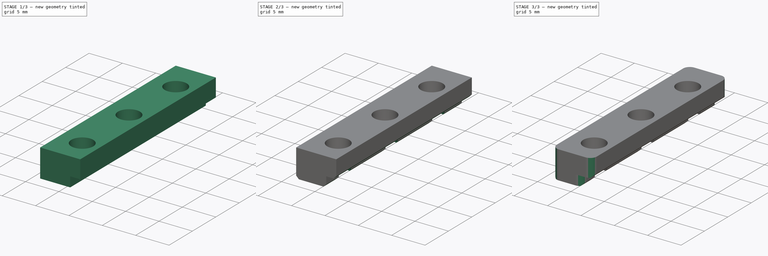
[diagram: build sequence overview — one tinted view per stage of 3, left to right]
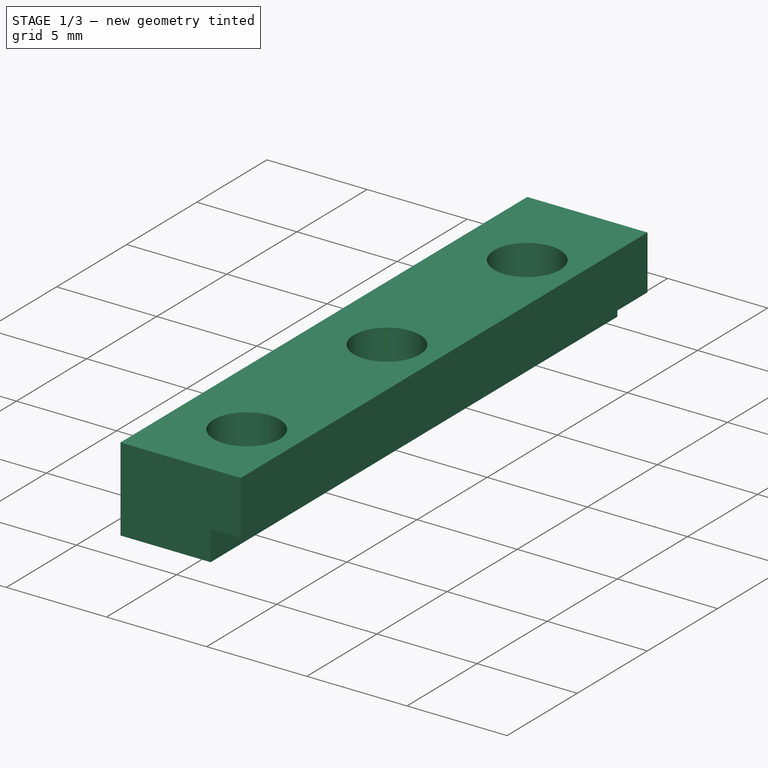
[diagram: stage 1 of 3 — iso view after this stage's code; geometry added in this stage tinted green]
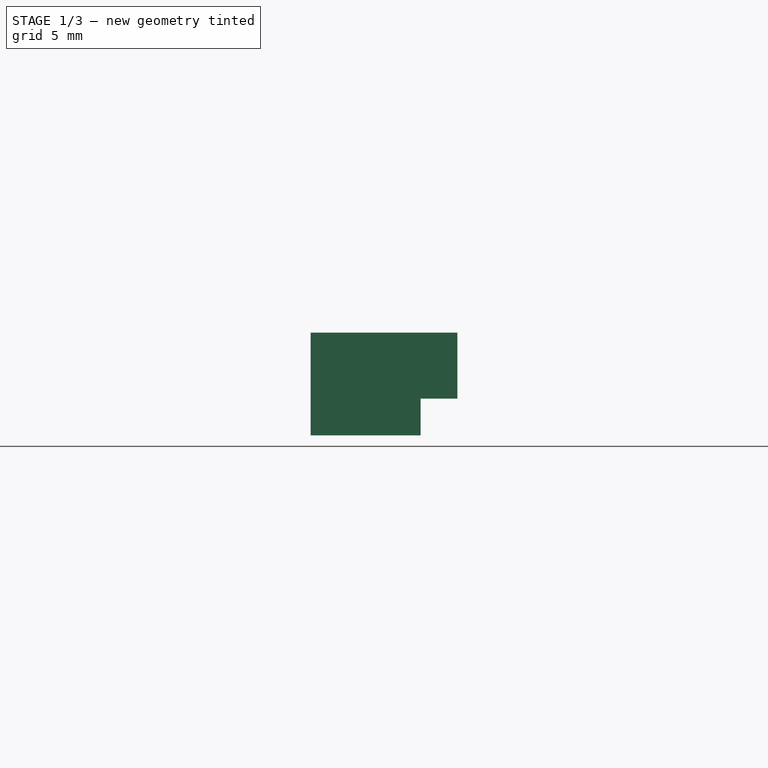
[diagram: stage 1 of 3 — front view after this stage's code; geometry added in this stage tinted green]
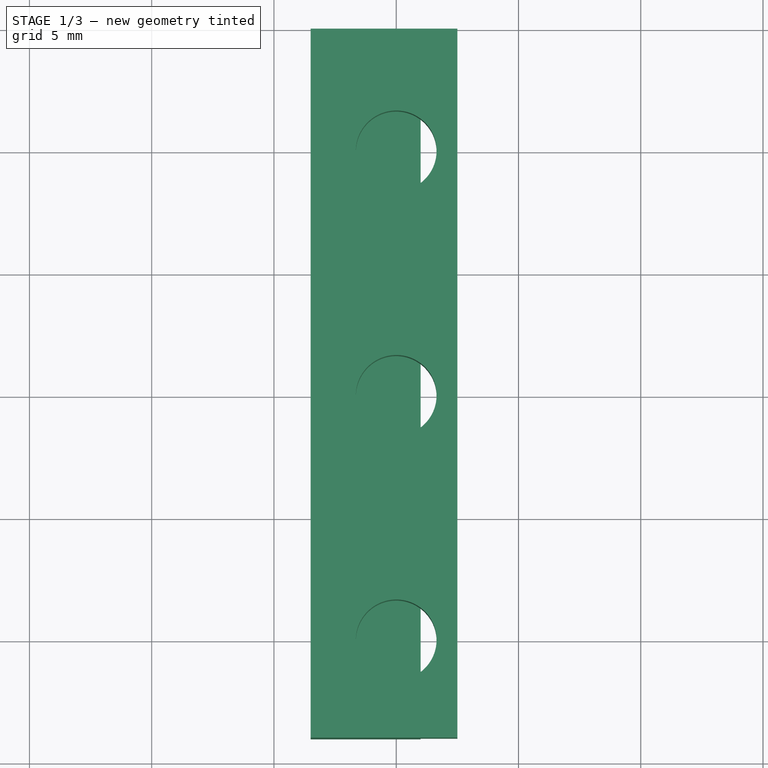
[diagram: stage 1 of 3 — top view after this stage's code; geometry added in this stage tinted green]
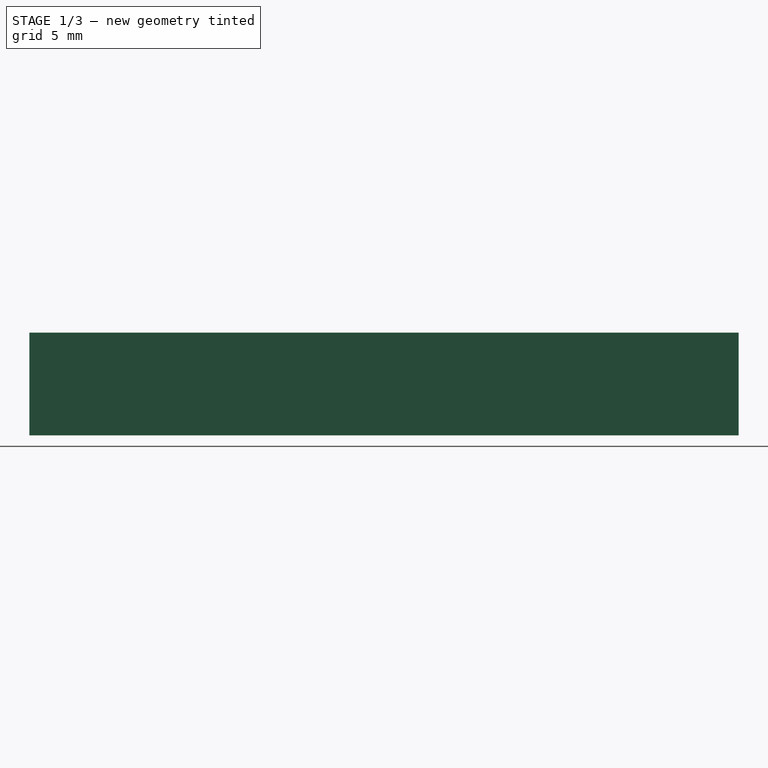
[diagram: stage 1 of 3 — right view after this stage's code; geometry added in this stage tinted green]
FCSTD DOCUMENT  (FreeCAD 0.19R24276 (Git))
Label: Pcb_support_spacer_up_v1
License: All rights reserved
LicenseURL: http://en.wikipedia.org/wiki/All_rights_reserved
objects: Sketcher::SketchObject×3, PartDesign::Pad×2, PartDesign::Chamfer×2, PartDesign::Fillet×2, PartDesign::Pocket×1, PartDesign::Body×1
note: 18 computed .brp shape members not serialized (recipe doc carries the construction recipe); baked Part::Feature solids carry a one-line shape summary decoded from their .brp

FEATURE [Sketcher::SketchObject] Sketch
  FullyConstrained = true
  MapMode = 5
  Support = -> [XY_Plane]
  sketch-geometry (7):
    g0: Circle CenterX=0 CenterY=0 CenterZ=0 NormalX=0 NormalY=0 NormalZ=1 AngleXU=0 Radius=1.65
    g1: Circle CenterX=0 CenterY=-10 CenterZ=0 NormalX=0 NormalY=0 NormalZ=1 AngleXU=0 Radius=1.65
    g2: LineSegment StartX=2.5 StartY=5 StartZ=0 EndX=2.5 EndY=-24 EndZ=0
    g3: LineSegment StartX=-3.5 StartY=-24 StartZ=0 EndX=-3.5 EndY=5 EndZ=0
    g4: LineSegment StartX=-3.5 StartY=5 StartZ=0 EndX=2.5 EndY=5 EndZ=0
    g5: LineSegment StartX=2.5 StartY=-24 StartZ=0 EndX=-3.5 EndY=-24 EndZ=0
    g6: Circle CenterX=0 CenterY=-20 CenterZ=0 NormalX=0 NormalY=0 NormalZ=1 AngleXU=0 Radius=1.65
  constraints (20):
    c: Coincident(g0,g-1)
    c: PointOnObject(g1,g-2)
    c: Equal(g0,g1)
    c: Diameter(g1) = 3.3
    c: Vertical(g2)
    c: Vertical(g3)
    c: DistanceX(g3,g2) = 6
    c: DistanceY(g1,g0) = 10
    c: DistanceY(g3,g1) = 14
    c: Coincident(g4,g2)
    c: Horizontal(g4)
    c: DistanceY(g0,g2) = 5
    c: DistanceX(g1,g2) = 2.5
    c: Coincident(g4,g3)
    c: Coincident(g5,g3)
    c: Coincident(g5,g2)
    c: Horizontal(g5)
    c: PointOnObject(g6,g-2)
    c: Equal(g1,g6)
    c: DistanceY(g6,g1) = 10
FEATURE [PartDesign::Pad] Pad
  Direction = (1,1,1)
  Length = 2.7
  Length2 = 100
  Profile = -> Sketch
  Type = 0
FEATURE [Sketcher::SketchObject] Sketch001
  FullyConstrained = true
  MapMode = 5
  Placement = pos=(0,0,0) rot=(1,0,0;3.14159rad)
  Support = -> [Pad]
  sketch-geometry (4):
    g0: LineSegment StartX=1 StartY=24 StartZ=0 EndX=1 EndY=-5 EndZ=0
    g1: LineSegment StartX=1 StartY=24 StartZ=0 EndX=-3.5 EndY=24 EndZ=0
    g2: LineSegment StartX=-3.5 StartY=24 StartZ=0 EndX=-3.5 EndY=-5 EndZ=0
    g3: LineSegment StartX=-3.5 StartY=-5 StartZ=0 EndX=1 EndY=-5 EndZ=0
  constraints (12):
    c: Vertical(g0)
    c: Coincident(g1,g0)
    c: Horizontal(g1)
    c: Coincident(g2,g1)
    c: Vertical(g2)
    c: Coincident(g3,g2)
    c: Coincident(g3,g0)
    c: Horizontal(g3)
    c: DistanceX(g-1,g0) = 1
    c: DistanceY(g2,g1) = 29
    c: DistanceX(g1,g-1) = 3.5
    c: DistanceY(g2,g-1) = 5
FEATURE [Sketcher::SketchObject] Sketch002
  FullyConstrained = true
  MapMode = 5
  Placement = pos=(0,0,4.2) rot=(0,0,1;0rad)
  sketch-geometry (3):
    g0: Circle CenterX=0 CenterY=0 CenterZ=0 NormalX=0 NormalY=0 NormalZ=1 AngleXU=0 Radius=1.65
    g1: Circle CenterX=0 CenterY=-10 CenterZ=0 NormalX=0 NormalY=0 NormalZ=1 AngleXU=0 Radius=1.65
    g2: Circle CenterX=0 CenterY=-20 CenterZ=0 NormalX=0 NormalY=0 NormalZ=1 AngleXU=0 Radius=1.65
  constraints (8):
    c: Coincident(g0,g-1)
    c: PointOnObject(g1,g-2)
    c: Diameter(g0) = 3.3
    c: Equal(g0,g1)
    c: DistanceY(g1,g0) = 10
    c: PointOnObject(g2,g-2)
    c: DistanceY(g2,g1) = 10
    c: Equal(g1,g2)
FEATURE [PartDesign::Pad] Pad001
  BaseFeature = -> Pad
  Direction = (1,1,1)
  Length = 1.5
  Length2 = 100
  Profile = -> Sketch001
  Type = 0
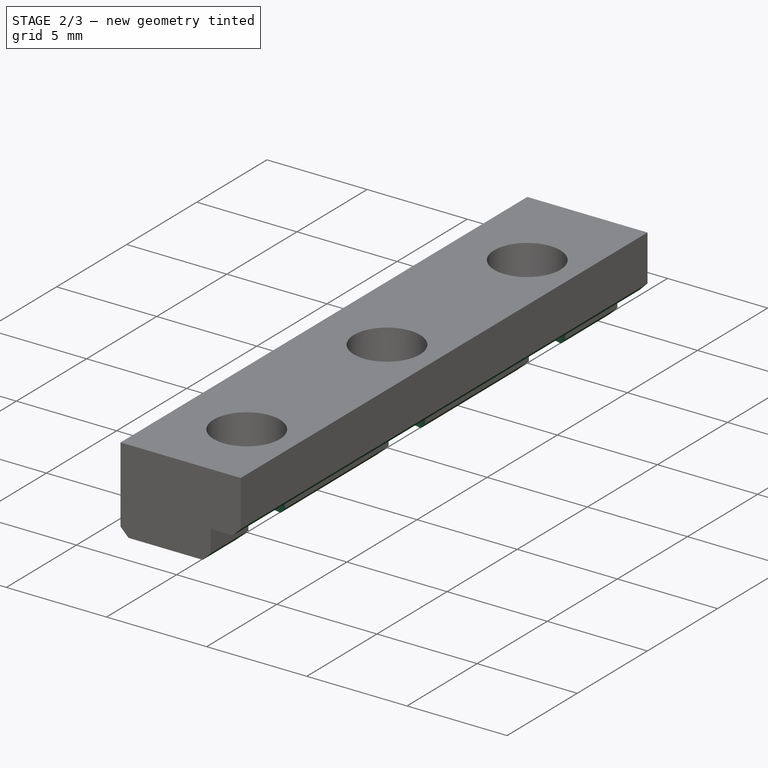
[diagram: stage 2 of 3 — iso view after this stage's code; geometry added in this stage tinted green]
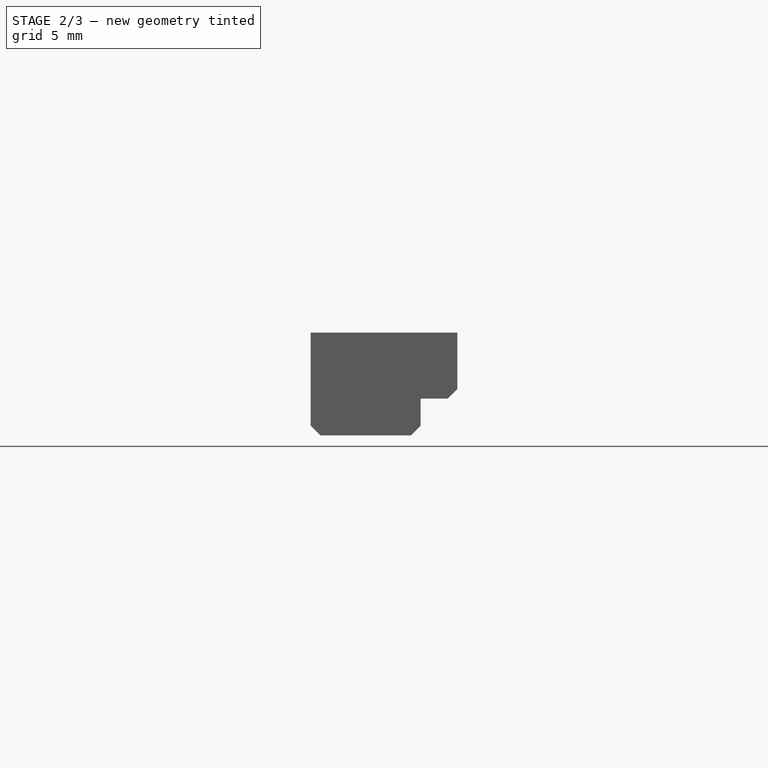
[diagram: stage 2 of 3 — front view after this stage's code; geometry added in this stage tinted green]
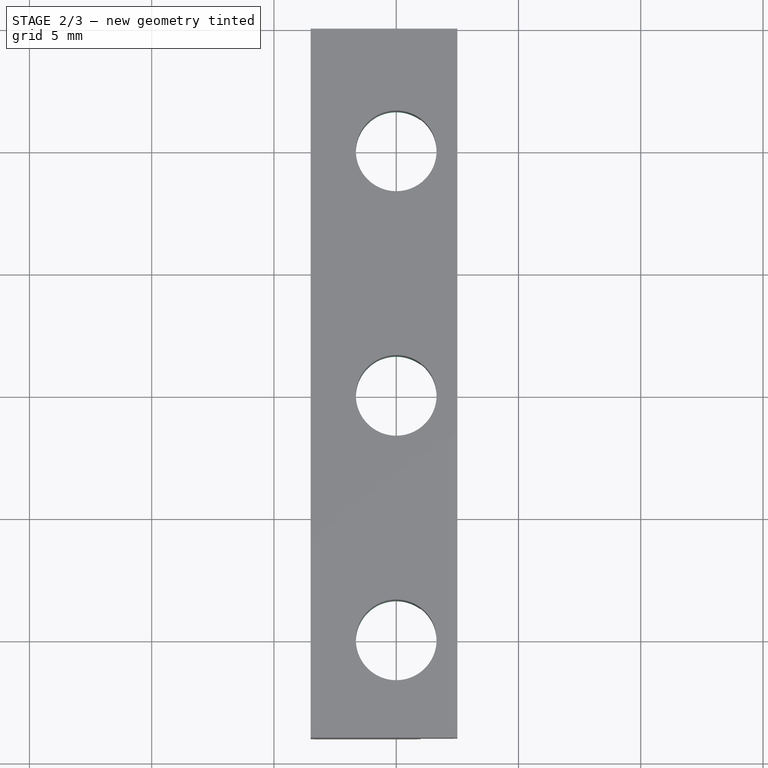
[diagram: stage 2 of 3 — top view after this stage's code; geometry added in this stage tinted green]
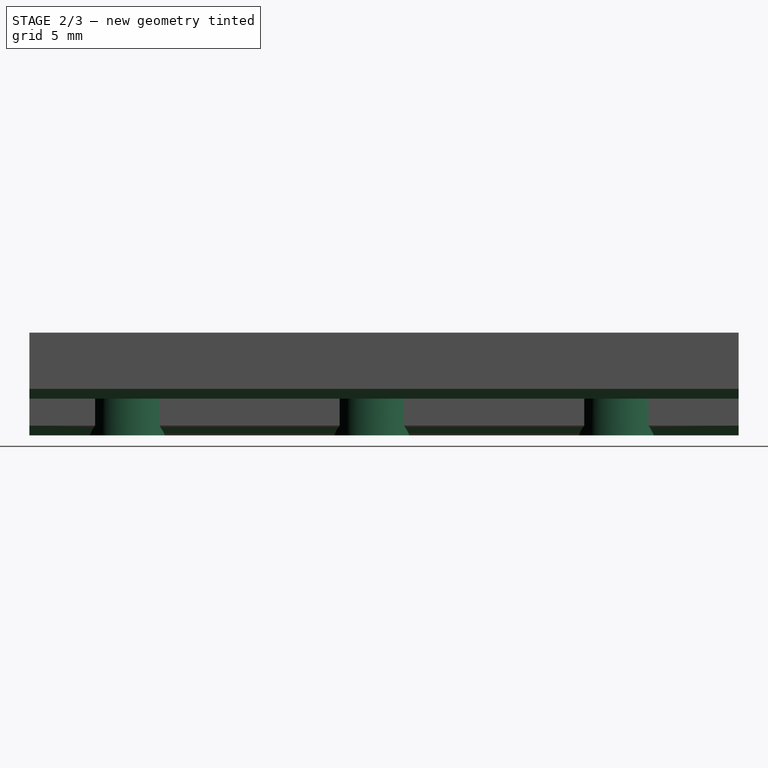
[diagram: stage 2 of 3 — right view after this stage's code; geometry added in this stage tinted green]
FEATURE [PartDesign::Pocket] Pocket
  BaseFeature = -> Pad001
  Length = 5
  Length2 = 100
  Profile = -> Sketch002
  Type = 1
FEATURE [PartDesign::Chamfer] Chamfer
  Angle = 45
  Base = -> Pocket [Edge3,Edge34,Edge39,Edge44,Edge49]
  BaseFeature = -> Pocket
  ChamferType = 0
  FlipDirection = false
  Size = 0.4
  Size2 = 1
  SupportTransform = false
FEATURE [PartDesign::Chamfer] Chamfer001
  Angle = 45
  Base = -> Chamfer [Edge55]
  BaseFeature = -> Chamfer
  ChamferType = 0
  FlipDirection = false
  Size = 0.4
  Size2 = 1
  SupportTransform = false
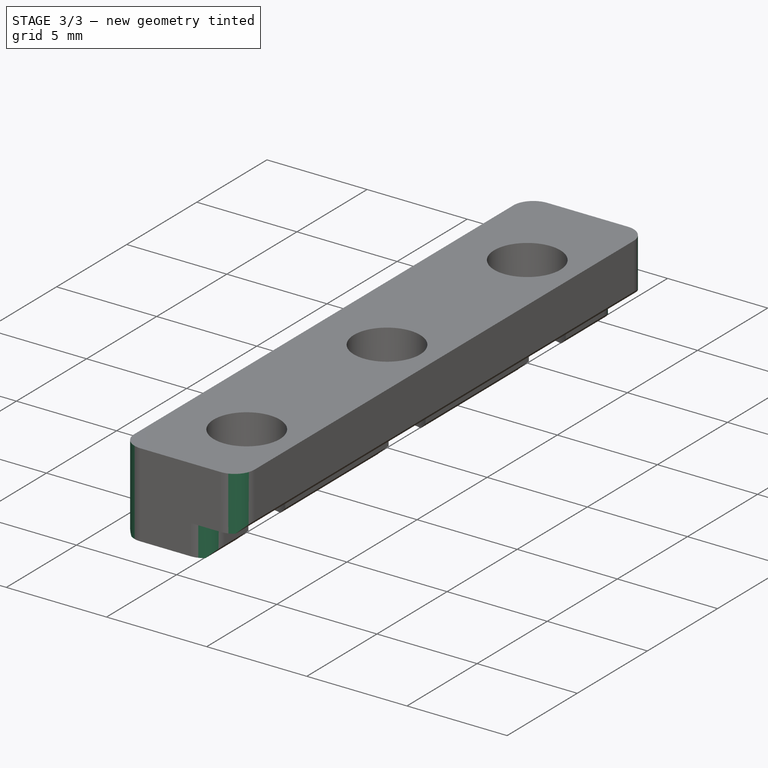
[diagram: stage 3 of 3 — iso view after this stage's code; geometry added in this stage tinted green]
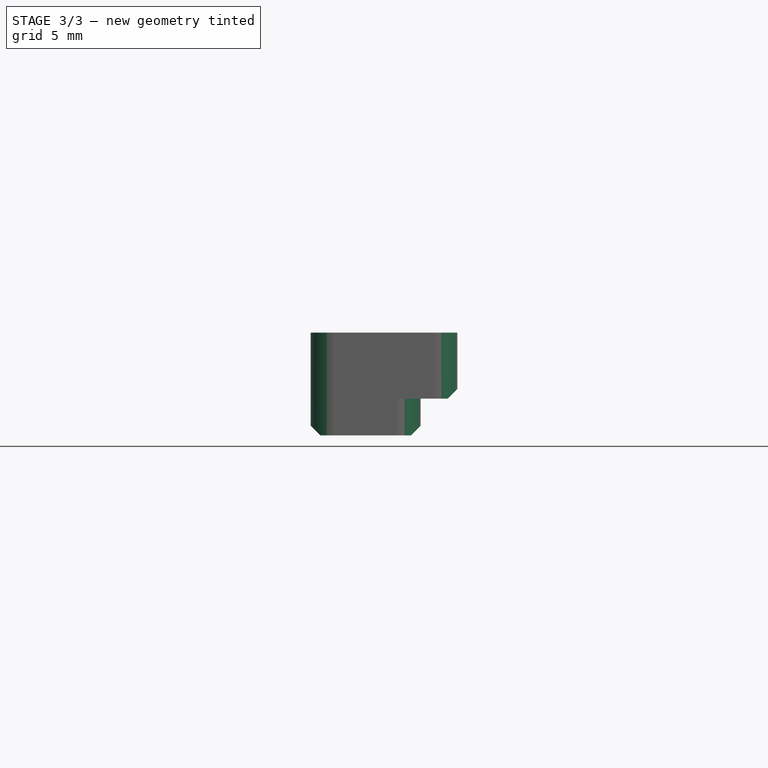
[diagram: stage 3 of 3 — front view after this stage's code; geometry added in this stage tinted green]
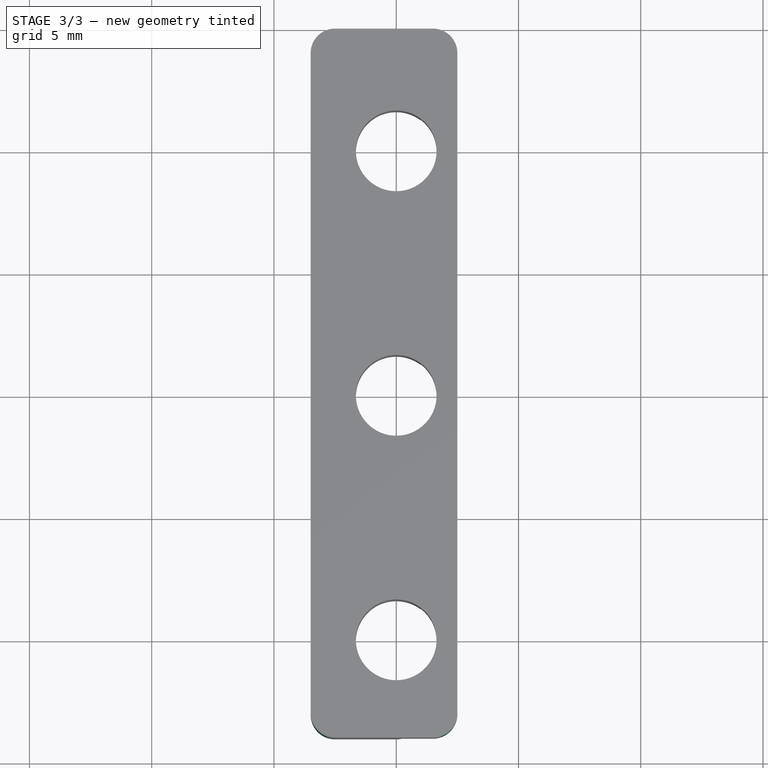
[diagram: stage 3 of 3 — top view after this stage's code; geometry added in this stage tinted green]
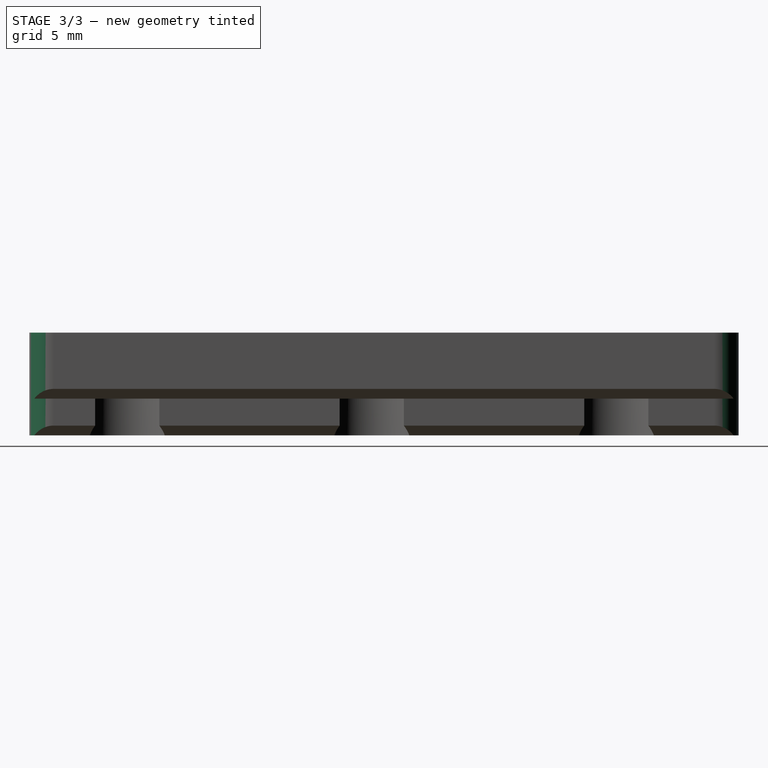
[diagram: stage 3 of 3 — right view after this stage's code; geometry added in this stage tinted green]
FEATURE [PartDesign::Fillet] Fillet
  Base = -> Chamfer001 [Edge24,Edge5,Edge4,Edge28]
  BaseFeature = -> Chamfer001
  Radius = 1
  SupportTransform = false
FEATURE [PartDesign::Fillet] Fillet001
  Base = -> Fillet [Edge79,Edge44,Edge42,Edge80]
  BaseFeature = -> Fillet
  Radius = 1
  SupportTransform = false
FEATURE [PartDesign::Body] Body
  Group = -> [Sketch,Pad,Sketch001,Pad001,Sketch002,Pocket,Chamfer,Chamfer001,Fillet,Fillet001]
  Origin = -> Origin
  Tip = -> Fillet001
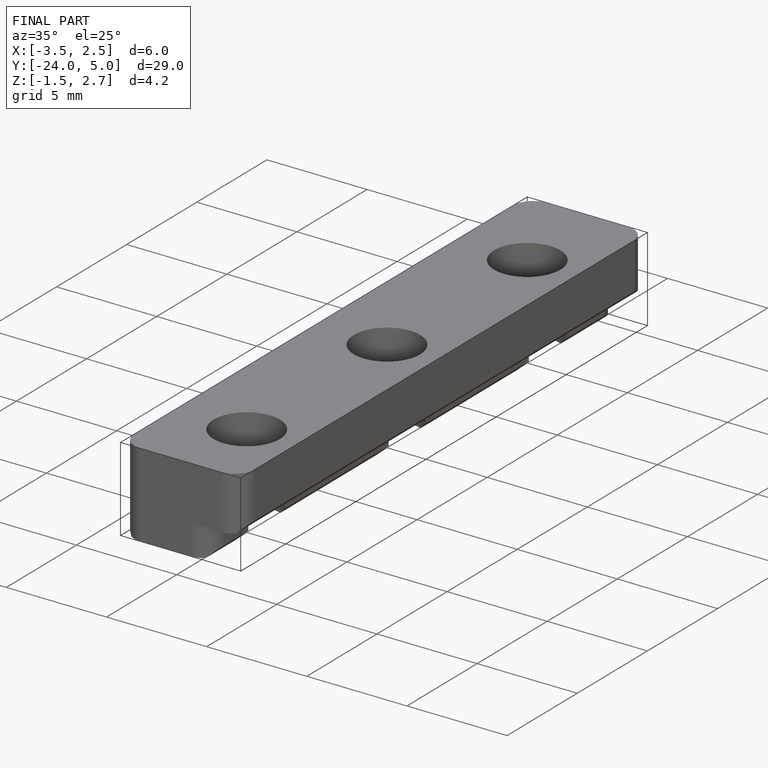
[diagram: finished part — iso view with bounding-box wireframe]
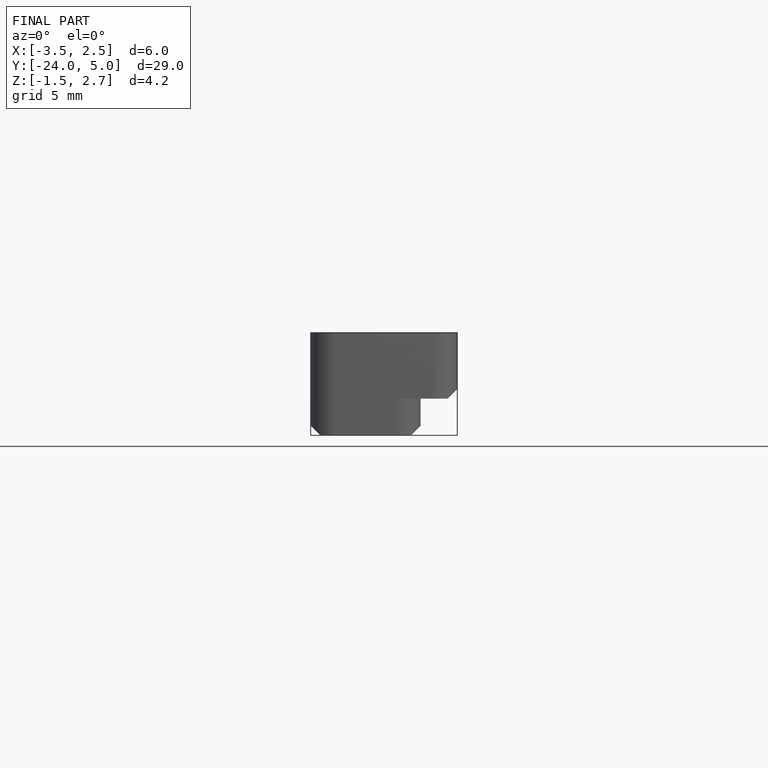
[diagram: finished part — front view with bounding-box wireframe]
